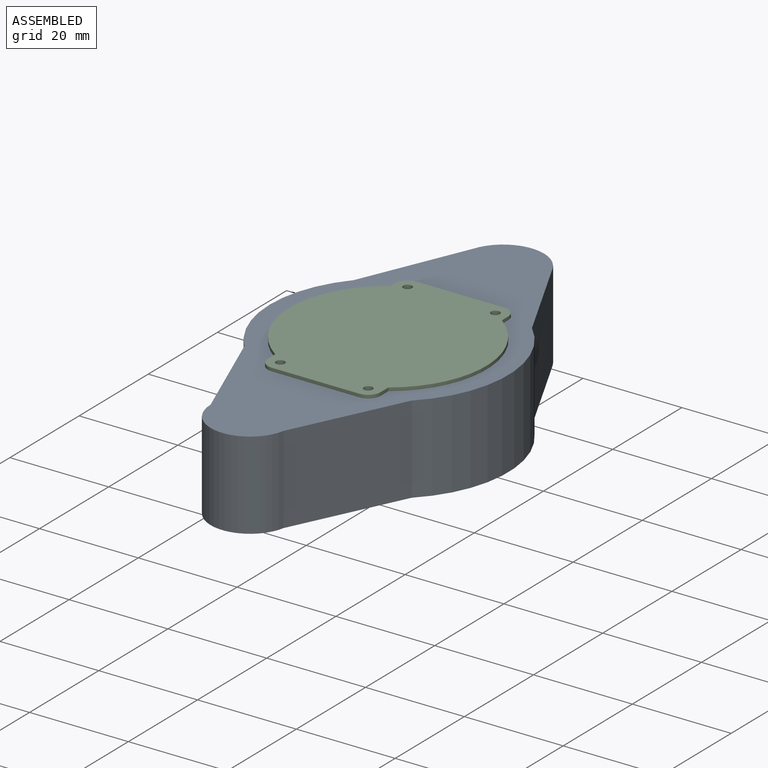
[diagram: assembled view]
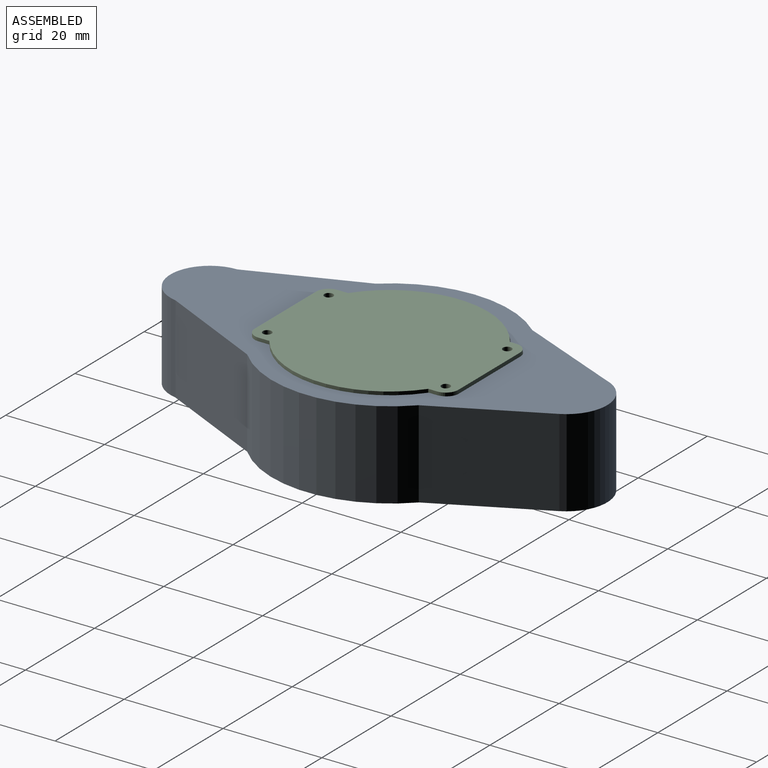
[diagram: assembled view, second angle]
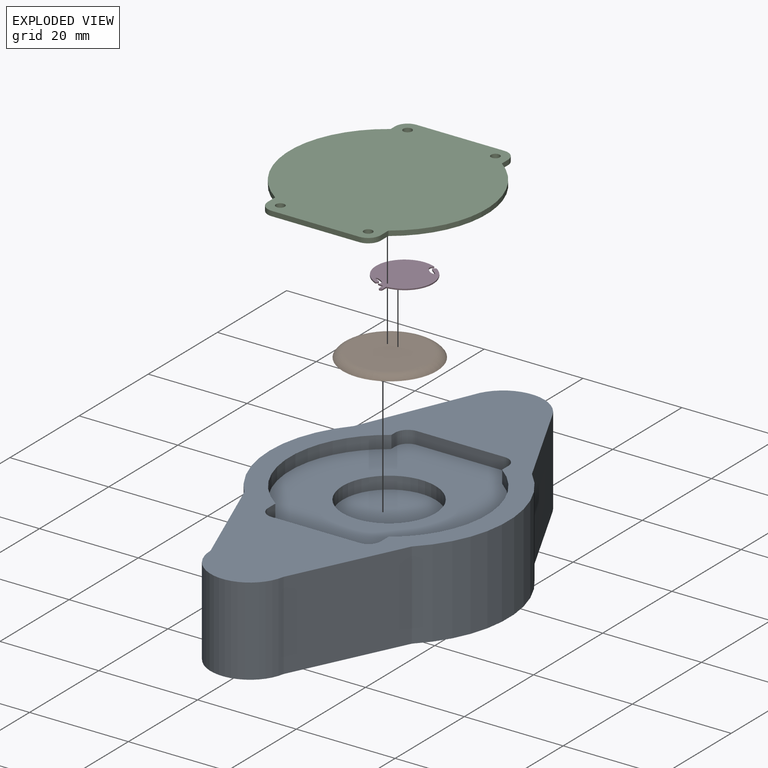
[diagram: exploded view]
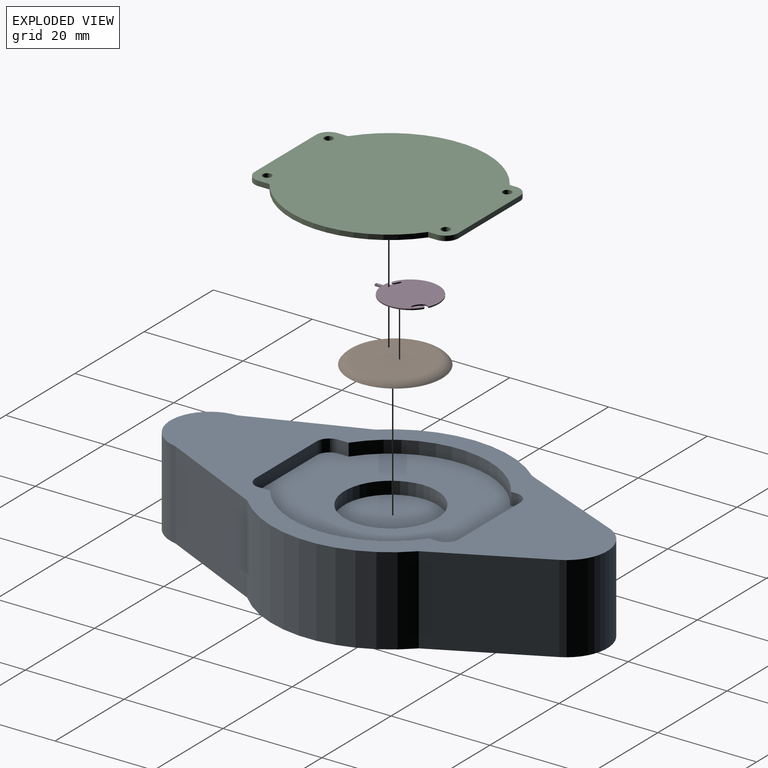
[diagram: exploded view, second angle]
ASSEMBLY  parts=4 mates=3
PART A: 28 faces, bbox 48.3x88.8x17.8 mm
  f0: extruded ~21.06x17.78mm, area 418.9mm2, adj f1,f20,f21,f22
  f1: cylinder r=8.29mm len=17.78mm, axis (0,0,-1), area 346.5mm2, adj f0,f2,f21,f22
  f2: extruded ~21.43x17.78mm, area 414.4mm2, adj f1,f3,f21,f22
  f3: cylinder r=24.14mm len=31.67mm, axis (0,0,-1), area 614.3mm2, adj f2,f4,f21,f22
  f4: plane 22.01x17.78mm, normal (-0.93,-0.36,0), area 420mm2, adj f3,f5,f21,f22
  f5: cylinder r=7.98mm len=17.78mm, axis (0,0,-1), area 419.1mm2, adj f4,f6,f21,f22
  f6: plane 21.92x17.78mm, normal (0.9,-0.43,0), area 432.7mm2, adj f5,f20,f21,f22
  f7: cylinder r=19.94mm len=17.78mm, axis (0,0,-1), area 270mm2, adj f8,f19,f21,f22,f23,f24
  f8: plane 2.54x1.11mm, normal (1,0,0), area 2.8mm2, adj f7,f9,f21,f26
  f9: cylinder r=2.54mm len=2.54mm, axis (0,0,-1), area 10.1mm2, adj f8,f10,f21,f26
  f10: plane 17.78x2.54mm, normal (0,-1,0), area 45.2mm2, adj f9,f11,f21,f26
  f11: cylinder r=2.54mm len=2.54mm, axis (0,0,-1), area 10.1mm2, adj f10,f12,f21,f26
  f12: plane 2.54x1.76mm, normal (-1,0,0), area 4.5mm2, adj f11,f13,f21,f26
  f13: cylinder r=19.94mm len=32.39mm, axis (0,0,-1), area 96mm2, adj f12,f14,f21,f26
  f14: plane 2.54x2.2mm, normal (-1,0,0), area 5.6mm2, adj f13,f15,f21,f26
  f15: cylinder r=2.54mm len=2.54mm, axis (0,0,-1), area 10.1mm2, adj f14,f16,f21,f26
  f16: plane 17.78x2.54mm, normal (0,1,0), area 45.2mm2, adj f15,f17,f21,f26
  f17: cylinder r=2.54mm len=2.54mm, axis (0,0,-1), area 10.1mm2, adj f16,f18,f21,f26
  f18: plane 2.54x2.12mm, normal (1,0,0), area 5.4mm2, adj f17,f19,f21,f26
  f19: cylinder r=19.94mm len=20.87mm, axis (0,0,-1), area 60.3mm2, adj f7,f18,f21,f26
  f20: cylinder r=24.14mm len=34.73mm, axis (0,0,-1), area 689.3mm2, adj f0,f6,f21,f22
  f21: plane 88.75x48.27mm, normal (0,0,1), area 1372.1mm2, adj f0,f1,f2,f3,f4,f5,f6,f7
  f22: plane 88.75x48.27mm, normal (0,0,-1), area 2703.8mm2, adj f0,f1,f2,f3,f4,f5,f6,f7
  f23: plane 15.24x0.16mm, normal (-1,0,0), area 2.4mm2, adj f7,f22,f24,f26
  f24: cylinder r=19.94mm len=15.24mm, axis (0,0,-1), area 229.3mm2, adj f7,f22,f23,f26
  f25: cylinder r=9.4mm len=18.8mm, axis (0,0,-1), area 150mm2, adj f26,f27
  f26: plane 41.43x39.88mm, normal (0,0,1), area 1054.2mm2, adj f8,f9,f10,f11,f12,f13,f14,f15
  f27: plane 18.8x18.8mm, normal (0,0,1), area 277.5mm2, adj f25
PART B: 3 faces, bbox 21.4x21.4x2.3 mm
  f0: plane 15.23x15.23mm, normal (0,0,1), area 182.2mm2, adj f2
  f1: plane 19x19mm, normal (0,0,-1), area 283.5mm2, adj f2
  f2: torus R=7.62mm, axis (0,0,-1), area 120.2mm2, adj f0,f1
PART C: 20 faces, bbox 39.9x41.4x3 mm
  f0: plane 17.78x0.99mm, normal (0,1,0), area 17.6mm2, adj f1,f11,f12,f13
  f1: cylinder r=2.54mm len=2.54mm, axis (0,0,1), area 4mm2, adj f0,f2,f12,f13
  f2: plane 1.27x0.99mm, normal (-1,0,0), area 1.3mm2, adj f1,f3,f12,f13
  f3: cylinder r=19.94mm len=32.95mm, axis (0,0,1), area 38.4mm2, adj f2,f4,f12,f13
  f4: plane 2.12x0.99mm, normal (-1,0,0), area 2.1mm2, adj f3,f5,f12,f13
  f5: cylinder r=2.54mm len=2.54mm, axis (0,0,1), area 4mm2, adj f4,f6,f12,f13
  f6: plane 17.78x0.99mm, normal (0,-1,0), area 17.6mm2, adj f5,f7,f12,f13
  f7: cylinder r=2.54mm len=2.54mm, axis (0,0,1), area 4mm2, adj f6,f8,f12,f13
  f8: plane 2.2x0.99mm, normal (1,0,0), area 2.2mm2, adj f7,f9,f12,f13
  f9: cylinder r=19.94mm len=32.39mm, axis (0,0,1), area 37.4mm2, adj f8,f10,f12,f13
  f10: plane 1.76x0.99mm, normal (1,0,0), area 1.7mm2, adj f9,f11,f12,f13
  f11: cylinder r=2.54mm len=2.54mm, axis (0,0,1), area 4mm2, adj f0,f10,f12,f13
  f12: plane 41.43x39.88mm, normal (0,0,-1), area 478.5mm2, adj f0,f1,f2,f3,f4,f5,f6,f7
  f13: plane 41.43x39.88mm, normal (0,0,1), area 1321.7mm2, adj f0,f1,f2,f3,f4,f5,f6,f7
  f14: cylinder r=0.89mm len=1.78mm, axis (0,0,1), area 5.5mm2, adj f12,f13
  f15: cylinder r=0.89mm len=1.78mm, axis (0,0,1), area 5.5mm2, adj f12,f13
  f16: cylinder r=0.89mm len=1.78mm, axis (0,0,1), area 5.5mm2, adj f12,f13
  f17: cylinder r=0.89mm len=1.78mm, axis (0,0,1), area 5.5mm2, adj f12,f13
  f18: plane 28.24x28.24mm, normal (0,0,-1), area 626.1mm2, adj f19
  f19: torus R=14.12mm, axis (0,0,1), area 319.9mm2, adj f12,f18
PART D: 11 faces, bbox 11.5x12.9x0.3 mm
  f0: cylinder r=5.76mm len=1.13mm, axis (0,0,-1), area 0.3mm2, adj f1,f7,f9,f10
  f1: plane 1.09x0.25mm, normal (-1,0,0), area 0.3mm2, adj f0,f2,f9,f10
  f2: cylinder r=0.34mm len=0.68mm, axis (0,0,-1), area 0.3mm2, adj f1,f3,f9,f10
  f3: plane 1.09x0.25mm, normal (1,0,0), area 0.3mm2, adj f2,f4,f9,f10
  f4: cylinder r=5.76mm len=10.64mm, axis (0,0,-1), area 3.7mm2, adj f3,f5,f9,f10
  f5: extruded ~2.43x2.11mm, area 1.7mm2, adj f4,f6,f9,f10
  f6: cylinder r=5.76mm len=11.1mm, axis (0,0,-1), area 4.6mm2, adj f5,f7,f9,f10
  f7: extruded ~1.86x1.75mm, area 1.3mm2, adj f0,f6,f9,f10
  f8: cylinder r=0.14mm len=0.27mm, axis (0,0,-1), area 0.2mm2, adj f9,f10
  f9: plane 12.95x11.52mm, normal (0,0,1), area 102mm2, adj f0,f1,f2,f3,f4,f5,f6,f7
  f10: plane 12.95x11.52mm, normal (0,0,-1), area 102mm2, adj f0,f1,f2,f3,f4,f5,f6,f7
PLACE A t=(41.6,33.1,2.6)mm fixed
PLACE B t=(41.28,35.78,16.85)mm
PLACE C rot(axis=(0,0,1),0deg) t=(41.58,32.81,21.05)mm
PLACE D rot(axis=(0,0,1),0deg) t=(41.84,37.23,18.31)mm
MATE parallel D.f6 <-> B.f2  axis (0,0,1) through (41.84,37.23,18.56)mm
MATE planar B.f2 <-> A.f25  axis (0,0,1) through (41.28,33.76,17.84)mm
MATE parallel C.f19 <-> A.f26  axis (0,0,-1) through (41.58,32.81,18.08)mm
